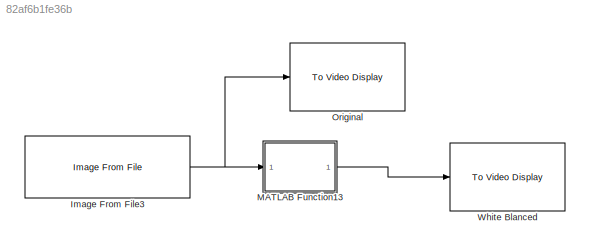
MODEL slx_82af6b1fe36b
KIND model
CONFIG AbsTol = auto
CONFIG FixedStep = auto
CONFIG MaxStep = auto
CONFIG MinStep = auto
CONFIG RelTol = 1e-3
CONFIG SampleTimeConstraint = Unconstrained
CONFIG Solver = VariableStepAuto
CONFIG SolverMode = Auto
CONFIG SolverName = VariableStepAuto
CONFIG StartTime = 0.0
CONFIG StopTime = 10.0
BLOCK [Reference] Image From File3  REF=visionsources/Image From File
  Ports = [0, 1]
  SourceBlock = visionsources/Image From File
  SourceType = Image From File
  Tag = vipblks_nd
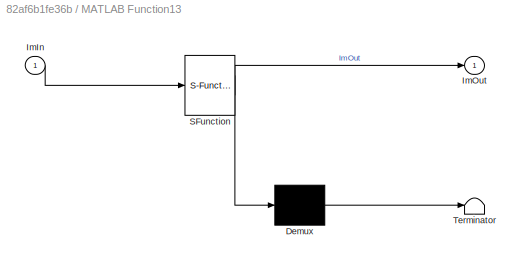
BLOCK [SubSystem] MATLAB Function13
  ErrorFcn = Stateflow.Translate.translate
  PermitHierarchicalResolution = ExplicitOnly
  Ports = [1, 1]
  RequestExecContextInheritance = off
  SFBlockType = MATLAB Function
  TreatAsAtomicUnit = on
  Variant = off
BLOCK [Demux] MATLAB Function13/ Demux 
  Outputs = 1
  Ports = [1, 1]
BLOCK [S-Function] MATLAB Function13/ SFunction 
  EnableBusSupport = on
  FunctionName = sf_sfun
  PortCounts = [1 2]
  Ports = [1, 2]
  SFunctionDeploymentMode = off
  Tag = Stateflow S-Function vvvvvvvvvvvv 14
BLOCK [Terminator] MATLAB Function13/ Terminator 
BLOCK [Inport] MATLAB Function13/ImIn
  IconDisplay = Port number
BLOCK [Outport] MATLAB Function13/ImOut
  IconDisplay = Port number
BLOCK [Reference] Original  REF=visionsinks/To Video Display
  Ports = [1]
  SourceBlock = visionsinks/To Video Display
  SourceType = To Video Display
BLOCK [Reference] White Blanced  REF=visionsinks/To Video Display
  Ports = [1]
  SourceBlock = visionsinks/To Video Display
  SourceType = To Video Display
NET Image From File3:1 -> MATLAB Function13:1, Original:1
LINE MATLAB Function13:1 -> White Blanced:1
note: NET lines group one-source signal fan-out (src -> all destinations, sorted); 1:1 wires keep LINE
CHART MATLAB Function13 states=1 transitions=1
  STATE_LABEL 'eML_blk_kernel()'
  STATE_LABEL 'SCRIPT:\nfunction ImOut = fcn(ImIn)\nImOut=ImIn;\ngrayImage = rgb2gray(ImIn);\nredChannel = ImIn(:, :, 1);\ngreenChannel = ImIn(:, :, 2);\nblueChannel = ImIn(:, :, 3);\nmeanR = mean2(redChannel);\nmeanG = mean2(greenChannel);\nmeanB = mean2(blueChannel);\nmeanGray = mean2(grayImage);\nredChannel = uint8(double(redChannel) * meanGray / meanR);\ngreenChannel = uint8(double(greenChannel) * meanGray / meanG);\nblu...<+112ch>'
